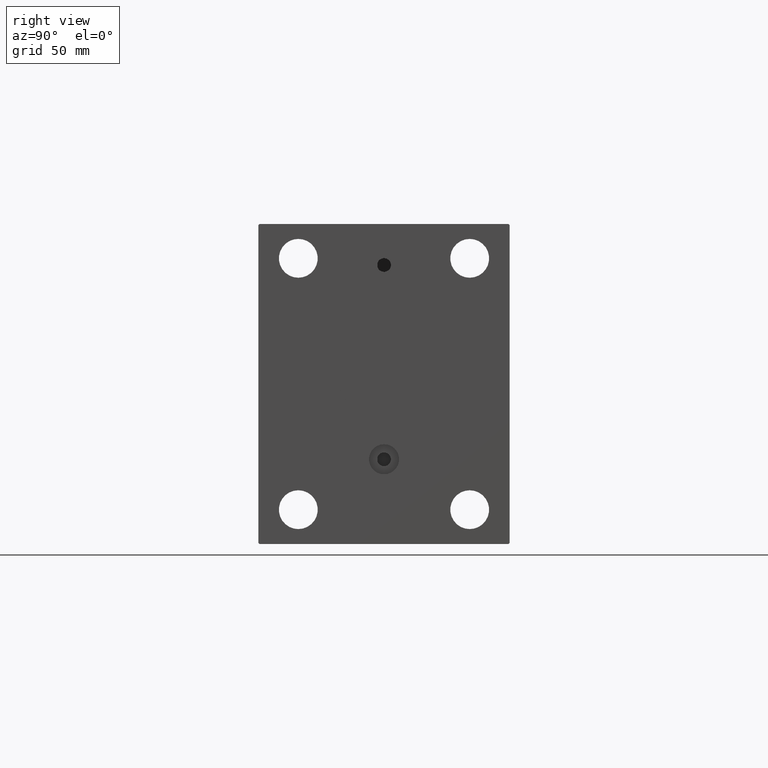
[diagram: clean part render]
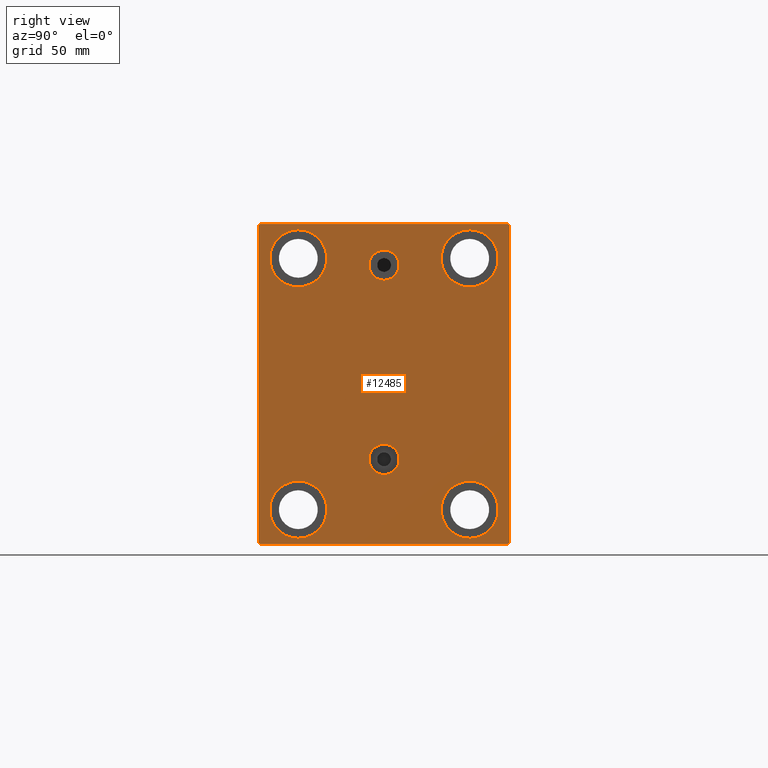
[diagram: same view with one face highlighted and labeled with its STEP entity id]
A machine part, right view. The second image highlights one B-rep face of the part: STEP entity #12485.
In plain terms, the highlighted planar face has unit normal (1, 0, 0).
Its self-contained STEP definition (entity closure, byte-faithful):
#13 = VERTEX_POINT ( 'NONE', #17639 ) ;
#387 = LINE ( 'NONE', #39062, #20478 ) ;
#672 = DIRECTION ( 'NONE',  ( -1.000000000000000000, -0.000000000000000000, -0.000000000000000000 ) ) ;
#677 = ORIENTED_EDGE ( 'NONE', *, *, #2308, .T. ) ;
#797 = VERTEX_POINT ( 'NONE', #28244 ) ;
#1067 = DIRECTION ( 'NONE',  ( -0.000000000000000000, 0.7071067811865771047, -0.7071067811865180408 ) ) ;
#1100 = CARTESIAN_POINT ( 'NONE',  ( 193.0000000000000000, 37.49999999999997868, -42.49999999999999289 ) ) ;
#1355 = ORIENTED_EDGE ( 'NONE', *, *, #18150, .T. ) ;
#1481 = VERTEX_POINT ( 'NONE', #26766 ) ;
#1679 = LINE ( 'NONE', #29314, #40022 ) ;
#1798 = DIRECTION ( 'NONE',  ( 0.000000000000000000, 0.000000000000000000, -1.000000000000000000 ) ) ;
#1913 = DIRECTION ( 'NONE',  ( -0.000000000000000000, -0.7071067811865671127, 0.7071067811865279218 ) ) ;
#1953 = DIRECTION ( 'NONE',  ( -1.000000000000000000, -0.000000000000000000, -0.000000000000000000 ) ) ;
#1963 = CARTESIAN_POINT ( 'NONE',  ( 193.0000000000000000, 37.49999999999997868, -54.99999999999999289 ) ) ;
#2182 = DIRECTION ( 'NONE',  ( 0.000000000000000000, 0.000000000000000000, 1.000000000000000000 ) ) ;
#2308 = EDGE_CURVE ( 'NONE', #9641, #25559, #31158, .T. ) ;
#2325 = CARTESIAN_POINT ( 'NONE',  ( 193.0000000000000000, -37.50000000000000711, 42.50000000000000711 ) ) ;
#2617 = ORIENTED_EDGE ( 'NONE', *, *, #15654, .T. ) ;
#3296 = ORIENTED_EDGE ( 'NONE', *, *, #30116, .T. ) ;
#3479 = CARTESIAN_POINT ( 'NONE',  ( 193.0000000000000000, 55.00000000000002132, -70.00000000000000000 ) ) ;
#3512 = AXIS2_PLACEMENT_3D ( 'NONE', #40165, #44070, #12538 ) ;
#3544 = AXIS2_PLACEMENT_3D ( 'NONE', #29428, #34034, #1798 ) ;
#3708 = LINE ( 'NONE', #3479, #5690 ) ;
#4073 = EDGE_CURVE ( 'NONE', #31997, #40051, #45202, .T. ) ;
#4107 = DIRECTION ( 'NONE',  ( 0.000000000000000000, 0.000000000000000000, 1.000000000000000000 ) ) ;
#4298 = ORIENTED_EDGE ( 'NONE', *, *, #40801, .T. ) ;
#4374 = EDGE_LOOP ( 'NONE', ( #9755, #2617, #43644, #25756, #44695, #677, #3296, #26890 ) ) ;
#4457 = DIRECTION ( 'NONE',  ( 1.000000000000000000, 0.000000000000000000, 0.000000000000000000 ) ) ;
#4460 = DIRECTION ( 'NONE',  ( 0.000000000000000000, 0.000000000000000000, 1.000000000000000000 ) ) ;
#4768 = CIRCLE ( 'NONE', #34161, 12.49999999999999645 ) ;
#4923 = DIRECTION ( 'NONE',  ( 1.000000000000000000, 0.000000000000000000, -0.000000000000000000 ) ) ;
#5045 = CARTESIAN_POINT ( 'NONE',  ( 193.0000000000000000, 54.99999999999999289, 70.00000000000000000 ) ) ;
#5185 = CARTESIAN_POINT ( 'NONE',  ( 193.0000000000000000, -37.50000000000000711, 55.00000000000000711 ) ) ;
#5214 = VERTEX_POINT ( 'NONE', #25285 ) ;
#5487 = LINE ( 'NONE', #37017, #31639 ) ;
#5518 = DIRECTION ( 'NONE',  ( 0.000000000000000000, 0.000000000000000000, 1.000000000000000000 ) ) ;
#5652 = DIRECTION ( 'NONE',  ( -1.000000000000000000, -0.000000000000000000, -0.000000000000000000 ) ) ;
#5690 = VECTOR ( 'NONE', #17517, 1000.000000000000000 ) ;
#6412 = EDGE_CURVE ( 'NONE', #5214, #35505, #12200, .T. ) ;
#7035 = AXIS2_PLACEMENT_3D ( 'NONE', #45142, #17949, #35461 ) ;
#7297 = DIRECTION ( 'NONE',  ( 0.000000000000000000, 1.000000000000000000, 2.523234146875355012E-16 ) ) ;
#7381 = EDGE_CURVE ( 'NONE', #29340, #21710, #13584, .T. ) ;
#7407 = EDGE_CURVE ( 'NONE', #26336, #1481, #1679, .T. ) ;
#7560 = CARTESIAN_POINT ( 'NONE',  ( 193.0000000000000000, -37.50000000000002132, -54.99999999999999289 ) ) ;
#8127 = CARTESIAN_POINT ( 'NONE',  ( 193.0000000000000000, -55.00000000000000711, -69.50000000000007105 ) ) ;
#8350 = VECTOR ( 'NONE', #19030, 1000.000000000000000 ) ;
#8866 = FACE_OUTER_BOUND ( 'NONE', #4374, .T. ) ;
#8942 = DIRECTION ( 'NONE',  ( 0.000000000000000000, 0.000000000000000000, -1.000000000000000000 ) ) ;
#9244 = AXIS2_PLACEMENT_3D ( 'NONE', #1963, #5652, #25911 ) ;
#9641 = VERTEX_POINT ( 'NONE', #10500 ) ;
#9712 = EDGE_LOOP ( 'NONE', ( #17715, #4298 ) ) ;
#9755 = ORIENTED_EDGE ( 'NONE', *, *, #19906, .T. ) ;
#9846 = EDGE_CURVE ( 'NONE', #25948, #13, #33492, .T. ) ;
#10290 = LINE ( 'NONE', #31699, #30129 ) ;
#10500 = CARTESIAN_POINT ( 'NONE',  ( 193.0000000000000000, 54.50000000000004974, -70.00000000000000000 ) ) ;
#10553 = DIRECTION ( 'NONE',  ( -1.000000000000000000, -0.000000000000000000, -0.000000000000000000 ) ) ;
#10935 = EDGE_CURVE ( 'NONE', #13, #25948, #29121, .T. ) ;
#11469 = AXIS2_PLACEMENT_3D ( 'NONE', #37051, #16323, #5518 ) ;
#11714 = DIRECTION ( 'NONE',  ( -1.000000000000000000, -0.000000000000000000, -0.000000000000000000 ) ) ;
#12126 = LINE ( 'NONE', #22264, #8350 ) ;
#12157 = AXIS2_PLACEMENT_3D ( 'NONE', #22183, #36223, #4460 ) ;
#12169 = CARTESIAN_POINT ( 'NONE',  ( 193.0000000000000000, -37.50000000000002132, -54.99999999999999289 ) ) ;
#12200 = CIRCLE ( 'NONE', #9244, 12.49999999999999645 ) ;
#12401 = LINE ( 'NONE', #5045, #45217 ) ;
#12472 = EDGE_CURVE ( 'NONE', #18912, #24084, #42465, .T. ) ;
#12485 = ADVANCED_FACE ( 'NONE', ( #22669, #26125, #19440, #26802, #33493, #15986, #8866 ), #27045, .T. ) ;
#12538 = DIRECTION ( 'NONE',  ( 0.000000000000000000, 0.000000000000000000, -1.000000000000000000 ) ) ;
#12578 = AXIS2_PLACEMENT_3D ( 'NONE', #35266, #31809, #38488 ) ;
#12805 = EDGE_LOOP ( 'NONE', ( #27195, #39811 ) ) ;
#13584 = CIRCLE ( 'NONE', #22409, 6.580000000000002736 ) ;
#15285 = VERTEX_POINT ( 'NONE', #17732 ) ;
#15654 = EDGE_CURVE ( 'NONE', #797, #30817, #12126, .T. ) ;
#15829 = CIRCLE ( 'NONE', #7035, 6.580000000000002736 ) ;
#15986 = FACE_BOUND ( 'NONE', #44842, .T. ) ;
#16323 = DIRECTION ( 'NONE',  ( -1.000000000000000000, -0.000000000000000000, -0.000000000000000000 ) ) ;
#16949 = VERTEX_POINT ( 'NONE', #17762 ) ;
#17517 = DIRECTION ( 'NONE',  ( 0.000000000000000000, -1.982541115402065110E-16, 1.000000000000000000 ) ) ;
#17639 = CARTESIAN_POINT ( 'NONE',  ( 193.0000000000000000, 37.50000000000000711, 42.50000000000000711 ) ) ;
#17715 = ORIENTED_EDGE ( 'NONE', *, *, #6412, .T. ) ;
#17732 = CARTESIAN_POINT ( 'NONE',  ( 193.0000000000000000, -7.970046508789298136E-15, 58.58000000000000540 ) ) ;
#17762 = CARTESIAN_POINT ( 'NONE',  ( 193.0000000000000000, -8.775864102628257178E-15, 45.42000000000000171 ) ) ;
#17949 = DIRECTION ( 'NONE',  ( 1.000000000000000000, 0.000000000000000000, -0.000000000000000000 ) ) ;
#18150 = EDGE_CURVE ( 'NONE', #24084, #18912, #4768, .T. ) ;
#18912 = VERTEX_POINT ( 'NONE', #2325 ) ;
#19030 = DIRECTION ( 'NONE',  ( 0.000000000000000000, -0.7071067811865279218, -0.7071067811865671127 ) ) ;
#19440 = FACE_BOUND ( 'NONE', #9712, .T. ) ;
#19760 = EDGE_LOOP ( 'NONE', ( #44400, #41188 ) ) ;
#19813 = ORIENTED_EDGE ( 'NONE', *, *, #32817, .F. ) ;
#19906 = EDGE_CURVE ( 'NONE', #1481, #797, #12401, .T. ) ;
#20478 = VECTOR ( 'NONE', #1067, 999.9999999999998863 ) ;
#20536 = CARTESIAN_POINT ( 'NONE',  ( 193.0000000000000000, -37.50000000000000711, 67.50000000000000000 ) ) ;
#20594 = EDGE_CURVE ( 'NONE', #21710, #29340, #15829, .T. ) ;
#21576 = ORIENTED_EDGE ( 'NONE', *, *, #12472, .T. ) ;
#21710 = VERTEX_POINT ( 'NONE', #28599 ) ;
#22120 = EDGE_CURVE ( 'NONE', #40051, #31997, #22505, .T. ) ;
#22183 = CARTESIAN_POINT ( 'NONE',  ( 193.0000000000000000, 37.50000000000000711, 55.00000000000000711 ) ) ;
#22264 = CARTESIAN_POINT ( 'NONE',  ( 193.0000000000000000, -62.25000000000152767, 62.24999999999806732 ) ) ;
#22409 = AXIS2_PLACEMENT_3D ( 'NONE', #33450, #4923, #26085 ) ;
#22505 = CIRCLE ( 'NONE', #40878, 12.49999999999999645 ) ;
#22528 = CARTESIAN_POINT ( 'NONE',  ( 193.0000000000000000, -37.50000000000000711, 55.00000000000000711 ) ) ;
#22669 = FACE_BOUND ( 'NONE', #26155, .T. ) ;
#23397 = CIRCLE ( 'NONE', #3544, 6.580000000000002736 ) ;
#23986 = CARTESIAN_POINT ( 'NONE',  ( 193.0000000000000000, 4.041334437186266200E-15, -39.58000000000000540 ) ) ;
#24084 = VERTEX_POINT ( 'NONE', #20536 ) ;
#24749 = ORIENTED_EDGE ( 'NONE', *, *, #36232, .F. ) ;
#25285 = CARTESIAN_POINT ( 'NONE',  ( 193.0000000000000000, 37.49999999999997868, -67.49999999999998579 ) ) ;
#25407 = DIRECTION ( 'NONE',  ( 0.000000000000000000, 0.000000000000000000, -1.000000000000000000 ) ) ;
#25559 = VERTEX_POINT ( 'NONE', #33513 ) ;
#25756 = ORIENTED_EDGE ( 'NONE', *, *, #33017, .T. ) ;
#25911 = DIRECTION ( 'NONE',  ( 0.000000000000000000, 0.000000000000000000, 1.000000000000000000 ) ) ;
#25948 = VERTEX_POINT ( 'NONE', #26767 ) ;
#26085 = DIRECTION ( 'NONE',  ( 0.000000000000000000, 0.000000000000000000, 1.000000000000000000 ) ) ;
#26125 = FACE_BOUND ( 'NONE', #12805, .T. ) ;
#26155 = EDGE_LOOP ( 'NONE', ( #24749, #19813 ) ) ;
#26336 = VERTEX_POINT ( 'NONE', #38616 ) ;
#26766 = CARTESIAN_POINT ( 'NONE',  ( 193.0000000000000000, 54.49999999999999289, 70.00000000000000000 ) ) ;
#26767 = CARTESIAN_POINT ( 'NONE',  ( 193.0000000000000000, 37.50000000000000711, 67.50000000000000000 ) ) ;
#26802 = FACE_BOUND ( 'NONE', #29658, .T. ) ;
#26890 = ORIENTED_EDGE ( 'NONE', *, *, #7407, .T. ) ;
#27045 = PLANE ( 'NONE',  #3512 ) ;
#27195 = ORIENTED_EDGE ( 'NONE', *, *, #7381, .F. ) ;
#27704 = CARTESIAN_POINT ( 'NONE',  ( 193.0000000000000000, 62.25000000000153477, -62.24999999999808153 ) ) ;
#28244 = CARTESIAN_POINT ( 'NONE',  ( 193.0000000000000000, -54.50000000000003553, 69.99999999999998579 ) ) ;
#28481 = VERTEX_POINT ( 'NONE', #8127 ) ;
#28515 = AXIS2_PLACEMENT_3D ( 'NONE', #5185, #1953, #2182 ) ;
#28599 = CARTESIAN_POINT ( 'NONE',  ( 193.0000000000000000, 4.847152031025224453E-15, -26.41999999999999815 ) ) ;
#29121 = CIRCLE ( 'NONE', #11469, 12.49999999999999645 ) ;
#29314 = CARTESIAN_POINT ( 'NONE',  ( 193.0000000000000000, 62.24999999999849365, 62.25000000000193978 ) ) ;
#29340 = VERTEX_POINT ( 'NONE', #23986 ) ;
#29361 = CIRCLE ( 'NONE', #30864, 6.580000000000002736 ) ;
#29428 = CARTESIAN_POINT ( 'NONE',  ( 193.0000000000000000, -8.775864102628257178E-15, 52.00000000000000711 ) ) ;
#29658 = EDGE_LOOP ( 'NONE', ( #21576, #1355 ) ) ;
#29753 = CARTESIAN_POINT ( 'NONE',  ( 193.0000000000000000, -8.775864102628257178E-15, 52.00000000000000711 ) ) ;
#30116 = EDGE_CURVE ( 'NONE', #25559, #26336, #3708, .T. ) ;
#30129 = VECTOR ( 'NONE', #7297, 1000.000000000000000 ) ;
#30508 = AXIS2_PLACEMENT_3D ( 'NONE', #7560, #10553, #4107 ) ;
#30817 = VERTEX_POINT ( 'NONE', #34905 ) ;
#30864 = AXIS2_PLACEMENT_3D ( 'NONE', #29753, #4457, #25407 ) ;
#31158 = LINE ( 'NONE', #27704, #37076 ) ;
#31162 = CARTESIAN_POINT ( 'NONE',  ( 193.0000000000000000, -54.50000000000000711, -70.00000000000002842 ) ) ;
#31298 = CARTESIAN_POINT ( 'NONE',  ( 193.0000000000000000, -37.50000000000002132, -42.49999999999999289 ) ) ;
#31639 = VECTOR ( 'NONE', #8942, 1000.000000000000000 ) ;
#31699 = CARTESIAN_POINT ( 'NONE',  ( 193.0000000000000000, -55.00000000000000711, -70.00000000000002842 ) ) ;
#31809 = DIRECTION ( 'NONE',  ( -1.000000000000000000, -0.000000000000000000, -0.000000000000000000 ) ) ;
#31997 = VERTEX_POINT ( 'NONE', #33797 ) ;
#32817 = EDGE_CURVE ( 'NONE', #15285, #16949, #23397, .T. ) ;
#33017 = EDGE_CURVE ( 'NONE', #28481, #44158, #387, .T. ) ;
#33205 = ORIENTED_EDGE ( 'NONE', *, *, #4073, .T. ) ;
#33450 = CARTESIAN_POINT ( 'NONE',  ( 193.0000000000000000, 4.041334437186266200E-15, -33.00000000000000000 ) ) ;
#33492 = CIRCLE ( 'NONE', #12157, 12.49999999999999645 ) ;
#33493 = FACE_BOUND ( 'NONE', #19760, .T. ) ;
#33513 = CARTESIAN_POINT ( 'NONE',  ( 193.0000000000000000, 55.00000000000002132, -69.50000000000000000 ) ) ;
#33797 = CARTESIAN_POINT ( 'NONE',  ( 193.0000000000000000, -37.50000000000002132, -67.49999999999998579 ) ) ;
#34034 = DIRECTION ( 'NONE',  ( 1.000000000000000000, 0.000000000000000000, 0.000000000000000000 ) ) ;
#34161 = AXIS2_PLACEMENT_3D ( 'NONE', #22528, #672, #36584 ) ;
#34905 = CARTESIAN_POINT ( 'NONE',  ( 193.0000000000000000, -55.00000000000000711, 69.49999999999998579 ) ) ;
#35068 = DIRECTION ( 'NONE',  ( -0.000000000000000000, 0.7071067811865279218, 0.7071067811865671127 ) ) ;
#35266 = CARTESIAN_POINT ( 'NONE',  ( 193.0000000000000000, 37.49999999999997868, -54.99999999999999289 ) ) ;
#35461 = DIRECTION ( 'NONE',  ( 0.000000000000000000, 0.000000000000000000, 1.000000000000000000 ) ) ;
#35505 = VERTEX_POINT ( 'NONE', #1100 ) ;
#35670 = ORIENTED_EDGE ( 'NONE', *, *, #22120, .T. ) ;
#36223 = DIRECTION ( 'NONE',  ( -1.000000000000000000, -0.000000000000000000, -0.000000000000000000 ) ) ;
#36232 = EDGE_CURVE ( 'NONE', #16949, #15285, #29361, .T. ) ;
#36584 = DIRECTION ( 'NONE',  ( 0.000000000000000000, 0.000000000000000000, 1.000000000000000000 ) ) ;
#37017 = CARTESIAN_POINT ( 'NONE',  ( 193.0000000000000000, -55.00000000000000711, 69.99999999999998579 ) ) ;
#37051 = CARTESIAN_POINT ( 'NONE',  ( 193.0000000000000000, 37.50000000000000711, 55.00000000000000711 ) ) ;
#37076 = VECTOR ( 'NONE', #35068, 1000.000000000000000 ) ;
#37983 = EDGE_CURVE ( 'NONE', #44158, #9641, #10290, .T. ) ;
#38488 = DIRECTION ( 'NONE',  ( 0.000000000000000000, 0.000000000000000000, 1.000000000000000000 ) ) ;
#38616 = CARTESIAN_POINT ( 'NONE',  ( 193.0000000000000000, 54.99999999999999289, 69.50000000000002842 ) ) ;
#39062 = CARTESIAN_POINT ( 'NONE',  ( 193.0000000000000000, -62.24999999999776890, -62.25000000000295586 ) ) ;
#39811 = ORIENTED_EDGE ( 'NONE', *, *, #20594, .F. ) ;
#40022 = VECTOR ( 'NONE', #1913, 1000.000000000000000 ) ;
#40051 = VERTEX_POINT ( 'NONE', #31298 ) ;
#40165 = CARTESIAN_POINT ( 'NONE',  ( 193.0000000000000000, 0.000000000000000000, 0.000000000000000000 ) ) ;
#40801 = EDGE_CURVE ( 'NONE', #35505, #5214, #43456, .T. ) ;
#40878 = AXIS2_PLACEMENT_3D ( 'NONE', #12169, #11714, #43020 ) ;
#41188 = ORIENTED_EDGE ( 'NONE', *, *, #9846, .T. ) ;
#41995 = EDGE_CURVE ( 'NONE', #30817, #28481, #5487, .T. ) ;
#42465 = CIRCLE ( 'NONE', #28515, 12.49999999999999645 ) ;
#43020 = DIRECTION ( 'NONE',  ( 0.000000000000000000, 0.000000000000000000, 1.000000000000000000 ) ) ;
#43456 = CIRCLE ( 'NONE', #12578, 12.49999999999999645 ) ;
#43644 = ORIENTED_EDGE ( 'NONE', *, *, #41995, .T. ) ;
#43933 = DIRECTION ( 'NONE',  ( 0.000000000000000000, -1.000000000000000000, -1.261617073437677999E-16 ) ) ;
#44070 = DIRECTION ( 'NONE',  ( 1.000000000000000000, 0.000000000000000000, 0.000000000000000000 ) ) ;
#44158 = VERTEX_POINT ( 'NONE', #31162 ) ;
#44400 = ORIENTED_EDGE ( 'NONE', *, *, #10935, .T. ) ;
#44695 = ORIENTED_EDGE ( 'NONE', *, *, #37983, .T. ) ;
#44842 = EDGE_LOOP ( 'NONE', ( #33205, #35670 ) ) ;
#45142 = CARTESIAN_POINT ( 'NONE',  ( 193.0000000000000000, 4.041334437186266200E-15, -33.00000000000000000 ) ) ;
#45202 = CIRCLE ( 'NONE', #30508, 12.49999999999999645 ) ;
#45217 = VECTOR ( 'NONE', #43933, 1000.000000000000000 ) ;